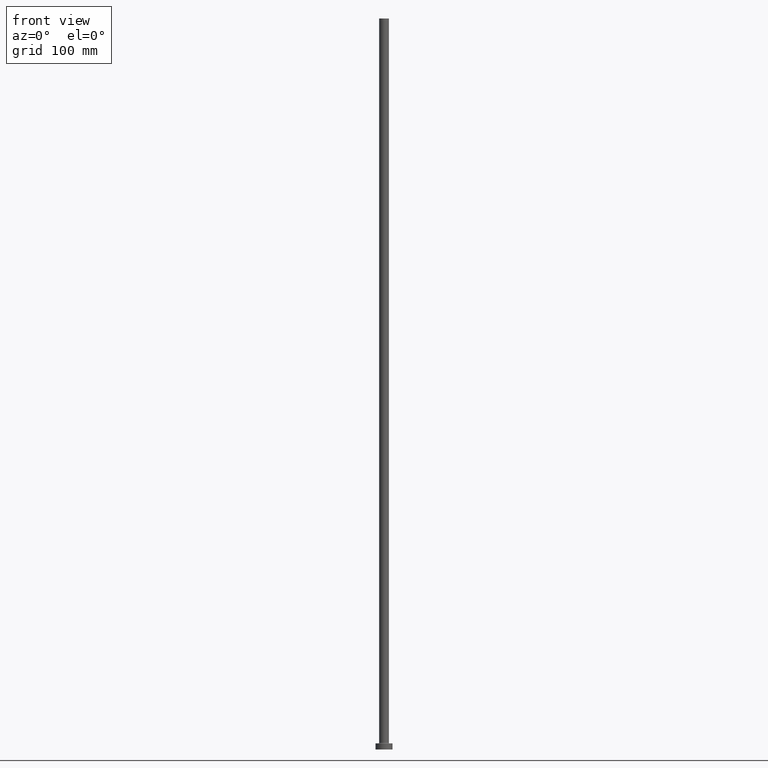
[diagram: clean part render]
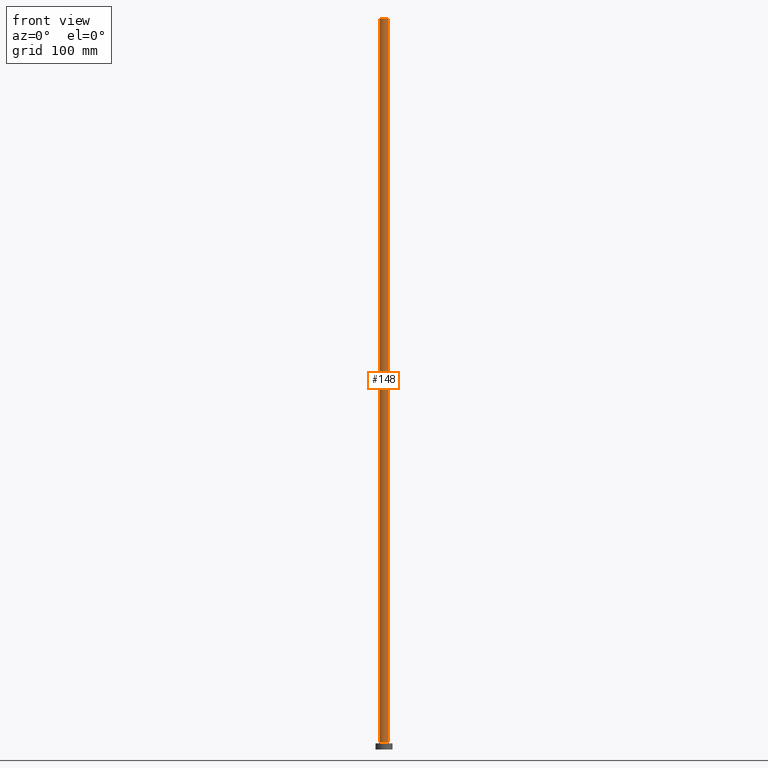
[diagram: same view with one face highlighted and labeled with its STEP entity id]
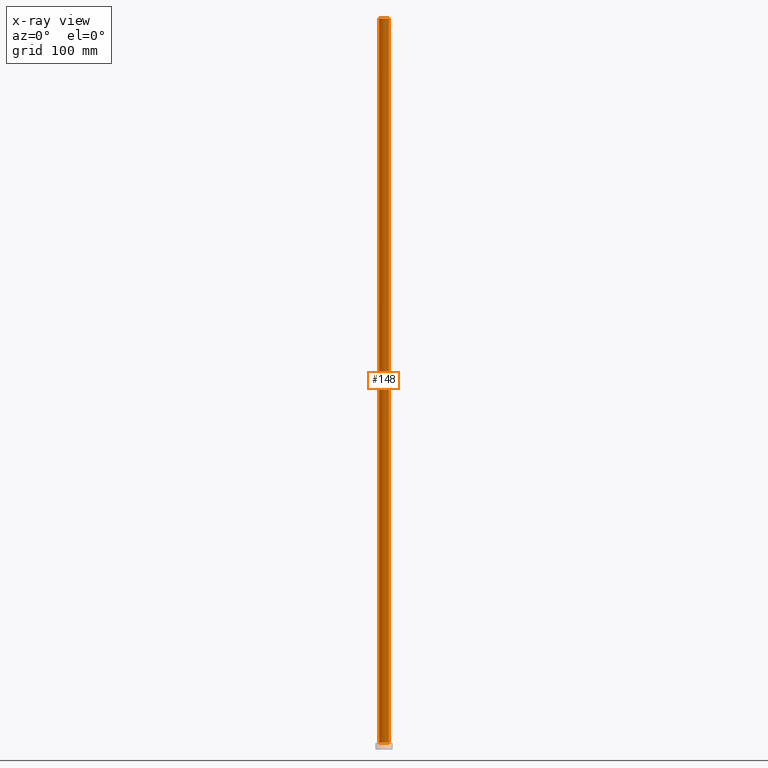
[diagram: x-ray of the same camera — body ghosted, the highlighted face saturated]
A machine part, front view. The second image highlights one B-rep face of the part: STEP entity #148.
The next image is the same camera in x-ray: the body ghosted, the highlighted face saturated — about 0% of this face is hidden behind the body in this view.
In plain terms, the highlighted cylindrical surface (edge-blend (fillet) strip) has radius 4 mm, axis along (-0, -0, -1).
Its self-contained STEP definition (entity closure, byte-faithful):
#6 = AXIS2_PLACEMENT_3D ( 'NONE', #308, #345, #282 ) ;
#9 = DIRECTION ( 'NONE',  ( -0.000000000000000000, -0.000000000000000000, -1.000000000000000000 ) ) ;
#26 = CARTESIAN_POINT ( 'NONE',  ( 4.000000000000000000, 4.898587196589412829E-16, 5.499999999999949374 ) ) ;
#36 = DIRECTION ( 'NONE',  ( -0.000000000000000000, -0.000000000000000000, -1.000000000000000000 ) ) ;
#41 = EDGE_CURVE ( 'NONE', #360, #411, #69, .T. ) ;
#43 = CARTESIAN_POINT ( 'NONE',  ( 0.000000000000000000, 0.000000000000000000, 5.499999999999949374 ) ) ;
#47 = LINE ( 'NONE', #185, #325 ) ;
#69 = LINE ( 'NONE', #344, #268 ) ;
#70 = DIRECTION ( 'NONE',  ( 0.000000000000000000, 0.000000000000000000, 1.000000000000000000 ) ) ;
#125 = AXIS2_PLACEMENT_3D ( 'NONE', #227, #328, #159 ) ;
#129 = EDGE_CURVE ( 'NONE', #285, #448, #47, .T. ) ;
#148 = ADVANCED_FACE ( 'NONE', ( #157 ), #304, .T. ) ;
#157 = FACE_OUTER_BOUND ( 'NONE', #222, .T. ) ;
#159 = DIRECTION ( 'NONE',  ( -1.000000000000000000, 0.000000000000000000, 0.000000000000000000 ) ) ;
#185 = CARTESIAN_POINT ( 'NONE',  ( -4.000000000000000000, 0.000000000000000000, 600.0000000000000000 ) ) ;
#193 = ORIENTED_EDGE ( 'NONE', *, *, #399, .F. ) ;
#203 = DIRECTION ( 'NONE',  ( 1.000000000000000000, 0.000000000000000000, 0.000000000000000000 ) ) ;
#222 = EDGE_LOOP ( 'NONE', ( #224, #193, #255, #295 ) ) ;
#224 = ORIENTED_EDGE ( 'NONE', *, *, #41, .F. ) ;
#227 = CARTESIAN_POINT ( 'NONE',  ( 0.000000000000000000, 0.000000000000000000, 600.0000000000000000 ) ) ;
#234 = CARTESIAN_POINT ( 'NONE',  ( -4.000000000000000000, 0.000000000000000000, 600.0000000000000000 ) ) ;
#242 = CARTESIAN_POINT ( 'NONE',  ( -4.000000000000000000, 0.000000000000000000, 5.499999999999949374 ) ) ;
#255 = ORIENTED_EDGE ( 'NONE', *, *, #129, .T. ) ;
#268 = VECTOR ( 'NONE', #36, 1000.000000000000000 ) ;
#282 = DIRECTION ( 'NONE',  ( 1.000000000000000000, 0.000000000000000000, 0.000000000000000000 ) ) ;
#285 = VERTEX_POINT ( 'NONE', #234 ) ;
#293 = CIRCLE ( 'NONE', #406, 4.000000000000000000 ) ;
#295 = ORIENTED_EDGE ( 'NONE', *, *, #337, .T. ) ;
#304 = CYLINDRICAL_SURFACE ( 'NONE', #125, 4.000000000000000000 ) ;
#308 = CARTESIAN_POINT ( 'NONE',  ( 0.000000000000000000, 0.000000000000000000, 600.0000000000000000 ) ) ;
#325 = VECTOR ( 'NONE', #9, 1000.000000000000000 ) ;
#328 = DIRECTION ( 'NONE',  ( -0.000000000000000000, -0.000000000000000000, -1.000000000000000000 ) ) ;
#337 = EDGE_CURVE ( 'NONE', #448, #411, #293, .T. ) ;
#344 = CARTESIAN_POINT ( 'NONE',  ( 4.000000000000000000, 4.898587196589412829E-16, 600.0000000000000000 ) ) ;
#345 = DIRECTION ( 'NONE',  ( 0.000000000000000000, 0.000000000000000000, 1.000000000000000000 ) ) ;
#360 = VERTEX_POINT ( 'NONE', #403 ) ;
#385 = CIRCLE ( 'NONE', #6, 4.000000000000000000 ) ;
#399 = EDGE_CURVE ( 'NONE', #285, #360, #385, .T. ) ;
#403 = CARTESIAN_POINT ( 'NONE',  ( 4.000000000000000000, 4.898587196589412829E-16, 600.0000000000000000 ) ) ;
#406 = AXIS2_PLACEMENT_3D ( 'NONE', #43, #70, #203 ) ;
#411 = VERTEX_POINT ( 'NONE', #26 ) ;
#448 = VERTEX_POINT ( 'NONE', #242 ) ;